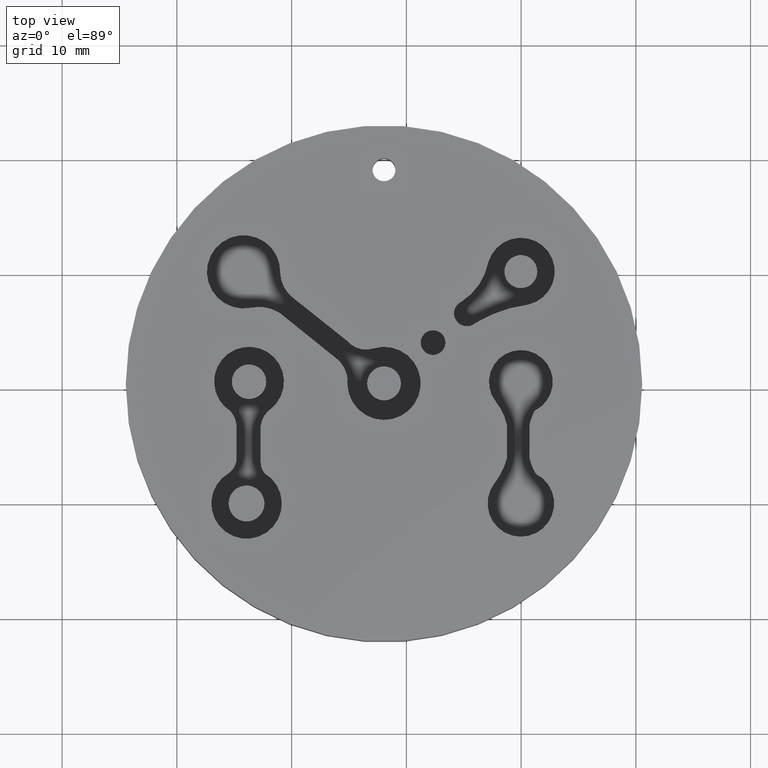
[diagram: clean part render]
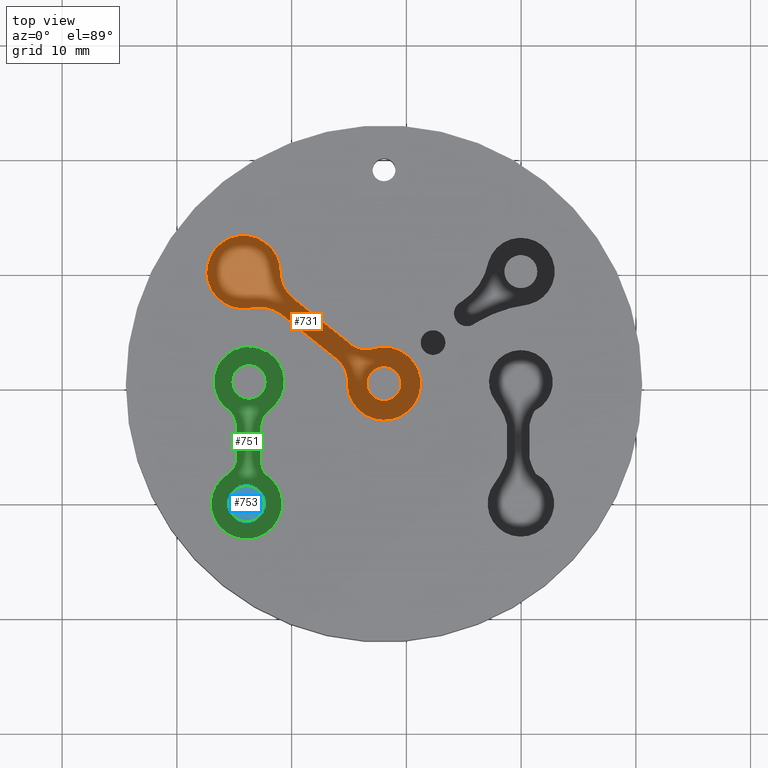
[diagram: same view with three faces highlighted in distinct colors, each labeled with its STEP entity id]
A machine part, top view with three faces highlighted in distinct colors.
Their STEP definitions:

[orange] entity #731 — the highlighted planar face has unit normal (0, 0, 1).
#16=FACE_BOUND('',#110,.T.);
#30=PLANE('',#821);
#62=FACE_OUTER_BOUND('',#109,.T.);
#109=EDGE_LOOP('',(#547,#548,#549,#550,#551,#552,#553,#554));
#110=EDGE_LOOP('',(#555));
#159=LINE('',#1204,#206);
#165=LINE('',#1228,#212);
#206=VECTOR('',#957,48.);
#212=VECTOR('',#983,48.);
#256=CIRCLE('',#799,1.47556711621174);
#259=CIRCLE('',#803,3.31496552583742);
#261=CIRCLE('',#807,2.6146646522035);
#263=CIRCLE('',#810,3.18865941362887);
#265=CIRCLE('',#813,2.18194427932069);
#267=CIRCLE('',#817,2.87217014798354);
#269=CIRCLE('',#820,3.19426913772284);
#314=VERTEX_POINT('',#1185);
#318=VERTEX_POINT('',#1194);
#319=VERTEX_POINT('',#1196);
#321=VERTEX_POINT('',#1202);
#323=VERTEX_POINT('',#1208);
#325=VERTEX_POINT('',#1214);
#327=VERTEX_POINT('',#1220);
#329=VERTEX_POINT('',#1226);
#331=VERTEX_POINT('',#1232);
#392=EDGE_CURVE('',#314,#314,#256,.T.);
#397=EDGE_CURVE('',#318,#319,#259,.T.);
#401=EDGE_CURVE('',#321,#318,#159,.T.);
#404=EDGE_CURVE('',#323,#321,#261,.T.);
#407=EDGE_CURVE('',#325,#323,#263,.T.);
#410=EDGE_CURVE('',#327,#325,#265,.T.);
#413=EDGE_CURVE('',#329,#327,#165,.T.);
#416=EDGE_CURVE('',#331,#329,#267,.T.);
#418=EDGE_CURVE('',#319,#331,#269,.T.);
#547=ORIENTED_EDGE('',*,*,#418,.F.);
#548=ORIENTED_EDGE('',*,*,#397,.F.);
#549=ORIENTED_EDGE('',*,*,#401,.F.);
#550=ORIENTED_EDGE('',*,*,#404,.F.);
#551=ORIENTED_EDGE('',*,*,#407,.F.);
#552=ORIENTED_EDGE('',*,*,#410,.F.);
#553=ORIENTED_EDGE('',*,*,#413,.F.);
#554=ORIENTED_EDGE('',*,*,#416,.F.);
#555=ORIENTED_EDGE('',*,*,#392,.F.);
#731=ADVANCED_FACE('',(#62,#16),#30,.T.);
#799=AXIS2_PLACEMENT_3D('',#1186,#940,#941);
#803=AXIS2_PLACEMENT_3D('',#1197,#950,#951);
#807=AXIS2_PLACEMENT_3D('',#1210,#963,#964);
#810=AXIS2_PLACEMENT_3D('',#1216,#970,#971);
#813=AXIS2_PLACEMENT_3D('',#1222,#977,#978);
#817=AXIS2_PLACEMENT_3D('',#1234,#989,#990);
#820=AXIS2_PLACEMENT_3D('',#1237,#995,#996);
#821=AXIS2_PLACEMENT_3D('',#1238,#997,#998);
#940=DIRECTION('center_axis',(0.,0.,1.));
#941=DIRECTION('ref_axis',(1.,0.,0.));
#950=DIRECTION('center_axis',(0.,0.,1.));
#951=DIRECTION('ref_axis',(0.555172612579208,0.831735156309974,0.));
#957=DIRECTION('',(-0.779213412579506,0.626758691727687,0.));
#963=DIRECTION('center_axis',(0.,0.,1.));
#964=DIRECTION('ref_axis',(0.992768827455693,-0.120041889489665,0.));
#970=DIRECTION('center_axis',(0.,0.,-1.));
#971=DIRECTION('ref_axis',(1.,0.,0.));
#977=DIRECTION('center_axis',(0.,0.,1.));
#978=DIRECTION('ref_axis',(-0.761212597785034,-0.64850241400735,0.));
#983=DIRECTION('',(0.78260102788148,-0.622523598877064,0.));
#989=DIRECTION('center_axis',(0.,0.,1.));
#990=DIRECTION('ref_axis',(-0.998871869121451,-0.0474867252800114,0.));
#995=DIRECTION('center_axis',(0.,0.,-1.));
#996=DIRECTION('ref_axis',(1.,0.,0.));
#997=DIRECTION('center_axis',(0.,0.,1.));
#998=DIRECTION('ref_axis',(1.,0.,0.));
#1185=CARTESIAN_POINT('',(26.5748102391839,-9.5249996215105,-1.5));
#1186=CARTESIAN_POINT('Origin',(28.0503773553956,-9.5249996215105,-1.5));
#1194=CARTESIAN_POINT('',(18.9965150875621,-3.41587185843771,-1.5));
#1196=CARTESIAN_POINT('',(16.4694430679608,-2.92998373340149,-1.5));
#1197=CARTESIAN_POINT('Origin',(17.1561370159729,-6.17304522823227,-1.5));
#1202=CARTESIAN_POINT('',(23.9106814482049,-7.36857137490609,-1.5));
#1204=CARTESIAN_POINT('',(18.3031112779054,-2.8581339427867,-1.5));
#1208=CARTESIAN_POINT('',(24.8676752124411,-9.71982242653293,-1.5));
#1210=CARTESIAN_POINT('Origin',(22.2719176514832,-9.40595314130058,-1.5));
#1214=CARTESIAN_POINT('',(27.1137484796632,-6.4770043450594,-1.5));
#1216=CARTESIAN_POINT('Origin',(28.0503773553956,-9.5249996215105,-1.5));
#1220=CARTESIAN_POINT('',(24.8119061734205,-5.80631021102671,-1.5));
#1222=CARTESIAN_POINT('Origin',(26.4728296465044,-4.39131407865771,-1.5));
#1226=CARTESIAN_POINT('',(20.0804594297657,-2.04265906591063,-1.5));
#1228=CARTESIAN_POINT('',(19.5993746732343,-1.65997797640127,-1.5));
#1232=CARTESIAN_POINT('',(18.9995231627245,0.0687142893770432,-1.5));
#1234=CARTESIAN_POINT('Origin',(21.8684531268757,0.205104244151788,-1.5));
#1237=CARTESIAN_POINT('Origin',(15.8077513344872,0.194999366402637,-1.5));
#1238=CARTESIAN_POINT('Origin',(21.9262594828944,-4.66219526550694,-1.5));

[blue] entity #753 — the highlighted planar face has unit normal (0, 0, 1).
#38=PLANE('',#871);
#84=FACE_OUTER_BOUND('',#140,.T.);
#140=EDGE_LOOP('',(#677));
#285=CIRCLE('',#848,1.56346471094669);
#351=VERTEX_POINT('',#1297);
#448=EDGE_CURVE('',#351,#351,#285,.T.);
#677=ORIENTED_EDGE('',*,*,#448,.T.);
#753=ADVANCED_FACE('',(#84),#38,.T.);
#848=AXIS2_PLACEMENT_3D('',#1299,#1065,#1066);
#871=AXIS2_PLACEMENT_3D('',#1350,#1123,#1124);
#1065=DIRECTION('center_axis',(0.,0.,1.));
#1066=DIRECTION('ref_axis',(1.,0.,0.));
#1123=DIRECTION('center_axis',(0.,0.,1.));
#1124=DIRECTION('ref_axis',(1.,0.,0.));
#1297=CARTESIAN_POINT('',(14.5012876444489,-19.9938158685677,0.));
#1299=CARTESIAN_POINT('Origin',(16.0647523553956,-19.9938158685677,0.));
#1350=CARTESIAN_POINT('Origin',(28.0503773553956,-9.5249996215105,0.));

[green] entity #751 — the highlighted planar face has unit normal (0, 0, 1).
#17=FACE_BOUND('',#131,.T.);
#18=FACE_BOUND('',#132,.T.);
#36=PLANE('',#869);
#82=FACE_OUTER_BOUND('',#130,.T.);
#130=EDGE_LOOP('',(#636,#637,#638,#639,#640,#641,#642,#643));
#131=EDGE_LOOP('',(#644));
#132=EDGE_LOOP('',(#645));
#185=LINE('',#1314,#232);
#191=LINE('',#1338,#238);
#232=VECTOR('',#1079,48.);
#238=VECTOR('',#1105,48.);
#282=CIRCLE('',#844,1.50057594854906);
#284=CIRCLE('',#847,1.56346471094669);
#287=CIRCLE('',#851,2.13081616101524);
#289=CIRCLE('',#855,1.62980474225353);
#291=CIRCLE('',#858,3.06980999880907);
#293=CIRCLE('',#861,1.46515175611475);
#295=CIRCLE('',#865,2.06240244404573);
#297=CIRCLE('',#868,3.04095983531042);
#348=VERTEX_POINT('',#1289);
#350=VERTEX_POINT('',#1295);
#354=VERTEX_POINT('',#1304);
#355=VERTEX_POINT('',#1306);
#357=VERTEX_POINT('',#1312);
#359=VERTEX_POINT('',#1318);
#361=VERTEX_POINT('',#1324);
#363=VERTEX_POINT('',#1330);
#365=VERTEX_POINT('',#1336);
#367=VERTEX_POINT('',#1342);
#443=EDGE_CURVE('',#348,#348,#282,.T.);
#446=EDGE_CURVE('',#350,#350,#284,.T.);
#451=EDGE_CURVE('',#354,#355,#287,.T.);
#455=EDGE_CURVE('',#357,#354,#185,.T.);
#458=EDGE_CURVE('',#359,#357,#289,.T.);
#461=EDGE_CURVE('',#361,#359,#291,.T.);
#464=EDGE_CURVE('',#363,#361,#293,.T.);
#467=EDGE_CURVE('',#365,#363,#191,.T.);
#470=EDGE_CURVE('',#367,#365,#295,.T.);
#472=EDGE_CURVE('',#355,#367,#297,.T.);
#636=ORIENTED_EDGE('',*,*,#472,.F.);
#637=ORIENTED_EDGE('',*,*,#451,.F.);
#638=ORIENTED_EDGE('',*,*,#455,.F.);
#639=ORIENTED_EDGE('',*,*,#458,.F.);
#640=ORIENTED_EDGE('',*,*,#461,.F.);
#641=ORIENTED_EDGE('',*,*,#464,.F.);
#642=ORIENTED_EDGE('',*,*,#467,.F.);
#643=ORIENTED_EDGE('',*,*,#470,.F.);
#644=ORIENTED_EDGE('',*,*,#446,.F.);
#645=ORIENTED_EDGE('',*,*,#443,.F.);
#751=ADVANCED_FACE('',(#82,#17,#18),#36,.T.);
#844=AXIS2_PLACEMENT_3D('',#1290,#1055,#1056);
#847=AXIS2_PLACEMENT_3D('',#1296,#1062,#1063);
#851=AXIS2_PLACEMENT_3D('',#1307,#1072,#1073);
#855=AXIS2_PLACEMENT_3D('',#1320,#1085,#1086);
#858=AXIS2_PLACEMENT_3D('',#1326,#1092,#1093);
#861=AXIS2_PLACEMENT_3D('',#1332,#1099,#1100);
#865=AXIS2_PLACEMENT_3D('',#1344,#1111,#1112);
#868=AXIS2_PLACEMENT_3D('',#1347,#1117,#1118);
#869=AXIS2_PLACEMENT_3D('',#1348,#1119,#1120);
#1055=DIRECTION('center_axis',(0.,0.,1.));
#1056=DIRECTION('ref_axis',(1.,0.,0.));
#1062=DIRECTION('center_axis',(0.,0.,1.));
#1063=DIRECTION('ref_axis',(1.,0.,0.));
#1072=DIRECTION('center_axis',(0.,0.,1.));
#1073=DIRECTION('ref_axis',(1.,-1.00038109635168E-14,0.));
#1079=DIRECTION('',(0.,1.,0.));
#1085=DIRECTION('center_axis',(0.,0.,1.));
#1086=DIRECTION('ref_axis',(0.590901468492534,-0.806743735354274,0.));
#1092=DIRECTION('center_axis',(0.,0.,-1.));
#1093=DIRECTION('ref_axis',(1.,0.,0.));
#1099=DIRECTION('center_axis',(0.,0.,1.));
#1100=DIRECTION('ref_axis',(-1.,-1.45488561057518E-14,0.));
#1105=DIRECTION('',(0.,-1.,0.));
#1111=DIRECTION('center_axis',(0.,0.,1.));
#1112=DIRECTION('ref_axis',(-0.600894769771138,0.799328140166285,0.));
#1117=DIRECTION('center_axis',(0.,0.,-1.));
#1118=DIRECTION('ref_axis',(1.,0.,0.));
#1119=DIRECTION('center_axis',(0.,0.,1.));
#1120=DIRECTION('ref_axis',(1.,0.,0.));
#1289=CARTESIAN_POINT('',(14.783191914546,-9.37693076576849,-1.5));
#1290=CARTESIAN_POINT('Origin',(16.2837678630951,-9.37693076576849,-1.5));
#1295=CARTESIAN_POINT('',(14.5012876444489,-19.9938158685677,-1.5));
#1296=CARTESIAN_POINT('Origin',(16.0647523553956,-19.9938158685677,-1.5));
#1304=CARTESIAN_POINT('',(15.2075045354951,-13.3591897071421,-1.5));
#1306=CARTESIAN_POINT('',(14.6892125288688,-11.9662994158571,-1.5));
#1307=CARTESIAN_POINT('Origin',(13.0766883744798,-13.3591897071421,-1.5));
#1312=CARTESIAN_POINT('',(15.2075045354951,-16.0141805740185,-1.5));
#1314=CARTESIAN_POINT('',(15.2075045354951,-17.4739473396038,-1.5));
#1318=CARTESIAN_POINT('',(14.5407538087953,-17.3290153396823,-1.5));
#1320=CARTESIAN_POINT('Origin',(13.5776997932416,-16.0141805740185,-1.5));
#1324=CARTESIAN_POINT('',(17.6205915327347,-17.3474791773954,-1.5));
#1326=CARTESIAN_POINT('Origin',(16.0647523553956,-19.9938158685677,-1.5));
#1330=CARTESIAN_POINT('',(17.3030010231126,-16.4365604905773,-1.5));
#1332=CARTESIAN_POINT('Origin',(18.7681527792273,-16.4365604905772,-1.5));
#1336=CARTESIAN_POINT('',(17.3030010231126,-13.2074759433206,-1.5));
#1338=CARTESIAN_POINT('',(17.3030010231126,-12.221064020318,-1.5));
#1342=CARTESIAN_POINT('',(18.1110647232172,-11.8076555352475,-1.5));
#1344=CARTESIAN_POINT('Origin',(19.3503515650075,-13.456191845121,-1.5));
#1347=CARTESIAN_POINT('Origin',(16.2837678630951,-9.37693076576849,-1.5));
#1348=CARTESIAN_POINT('Origin',(16.159835027496,-14.6997983989174,-1.5));